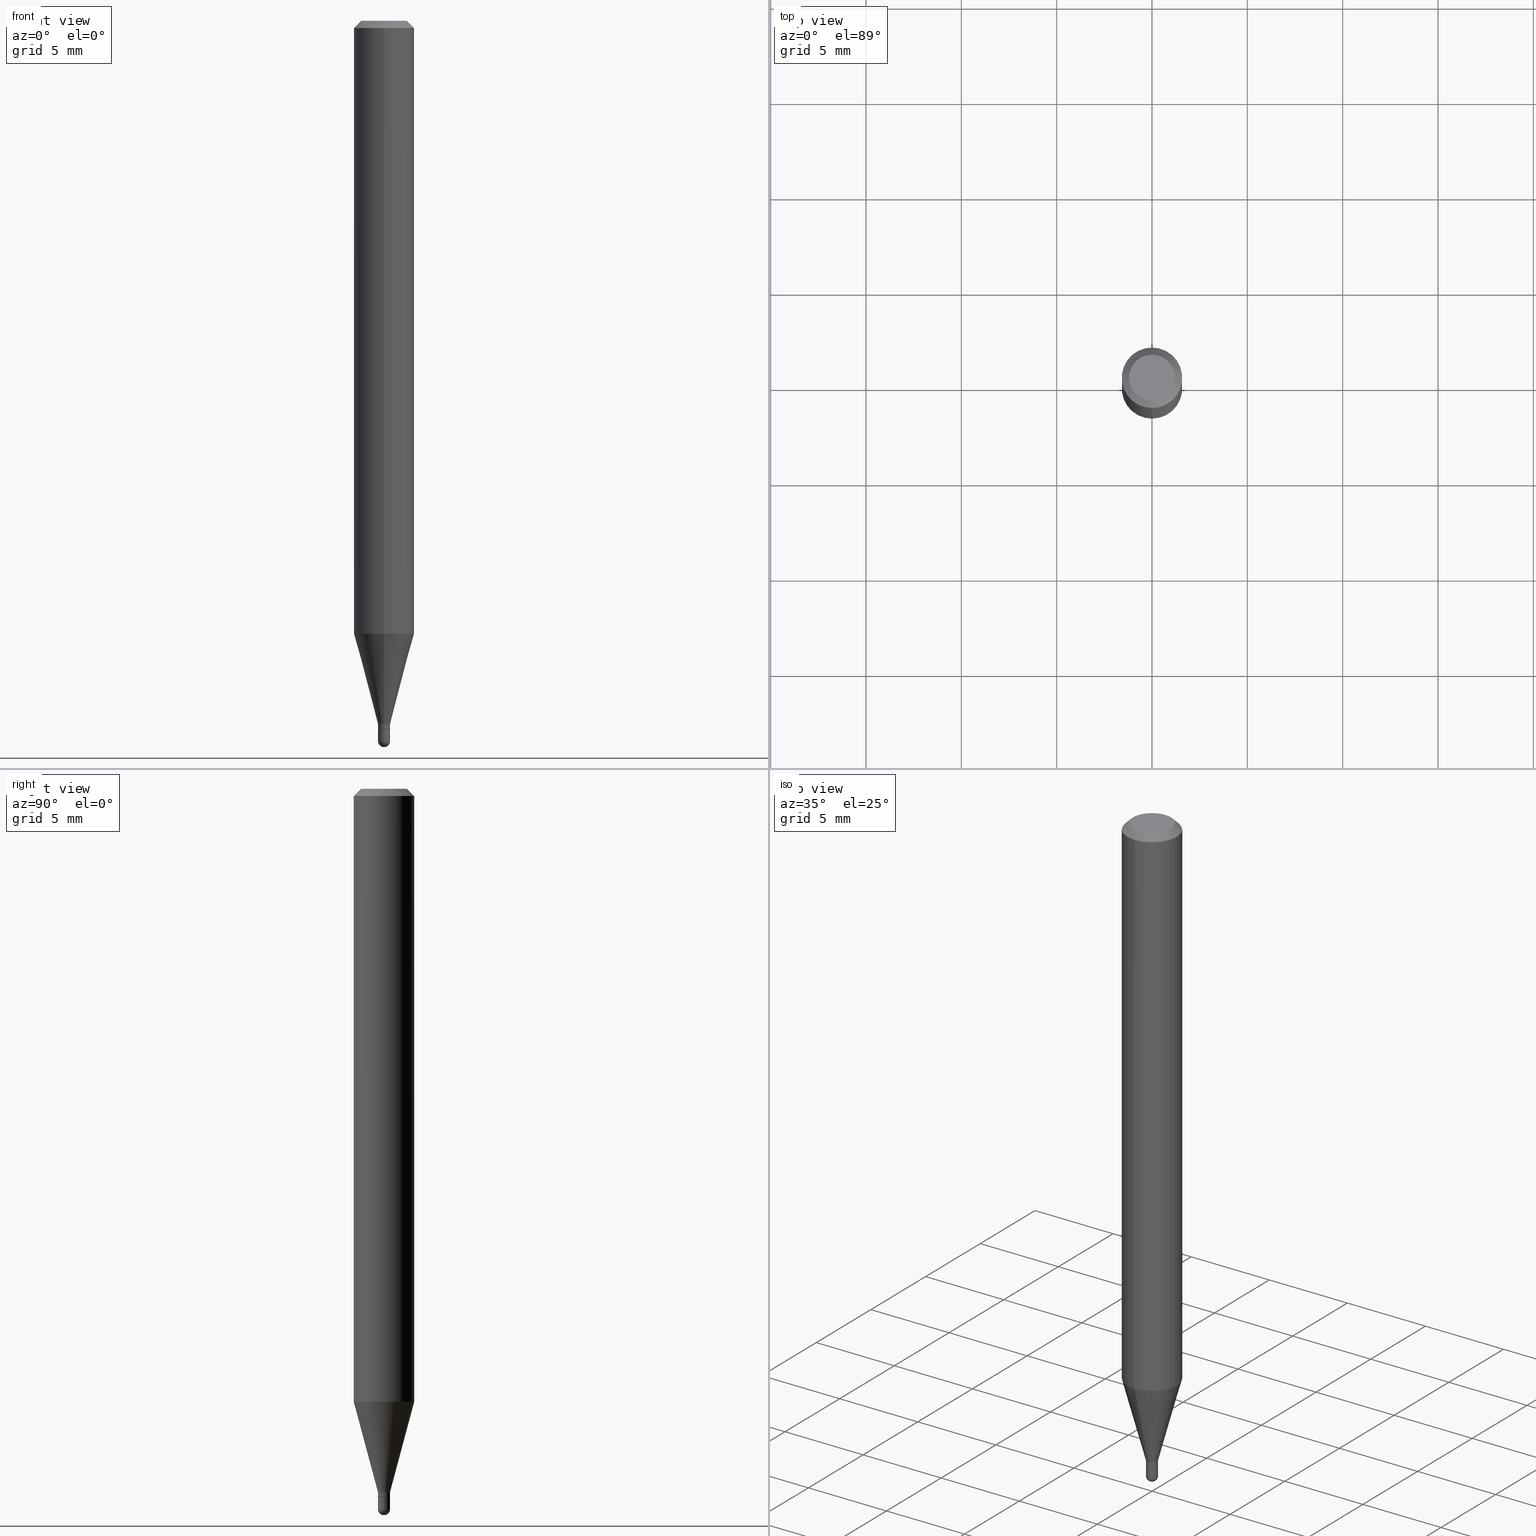
[diagram: canonical four-view strip — front | top / right | iso, engineering-drawing reading convention]
A machine part, canonical four-view strip (front | top / right | iso — engineering-drawing reading convention). The complete STEP part file that produces these views, byte-faithful:
ISO-10303-21;
HEADER;
FILE_DESCRIPTION (( 'STEP AP203' ),
    '1' );
FILE_NAME ('00689.STEP',
    '2024-03-07T18:02:06',
    ( '' ),
    ( '' ),
    'SwSTEP 2.0',
    'SolidWorks 2023',
    '' );
FILE_SCHEMA (( 'CONFIG_CONTROL_DESIGN' ));
ENDSEC;

DATA;
#1 = CC_DESIGN_DATE_AND_TIME_ASSIGNMENT ( #127, #90, ( #172 ) ) ;
#2 = DIRECTION ( 'NONE',  ( -2.445468806185136597E-29, 3.491481338843145583E-15, 1.000000000000000000 ) ) ;
#3 = DIRECTION ( 'NONE',  ( -2.445467529516572820E-29, 3.491483167105192382E-15, 1.000000000000000000 ) ) ;
#4 = CARTESIAN_POINT ( 'NONE',  ( -8.379555213219944590E-17, -0.01200000000000510728, -1.462000000000000188 ) ) ;
#5 = APPROVAL_ROLE ( '' ) ;
#6 = DIRECTION ( 'NONE',  ( -2.445468806185136597E-29, 3.491481338843145583E-15, 1.000000000000000000 ) ) ;
#7 = CARTESIAN_POINT ( 'NONE',  ( 3.637634849200391585E-29, -5.193578491529179799E-15, -1.487500000000000488 ) ) ;
#8 = DIRECTION ( 'NONE',  ( 1.000000000000000000, -6.982962677686294321E-15, 0.000000000000000000 ) ) ;
#9 = PERSON_AND_ORGANIZATION_ROLE ( 'classification_officer' ) ;
#10 = DIRECTION ( 'NONE',  ( 1.000000000000000000, -6.982962677686265922E-15, 4.883557194083112340E-29 ) ) ;
#11 = ADVANCED_FACE ( 'NONE', ( #95 ), #401, .T. ) ;
#12 = ADVANCED_FACE ( 'NONE', ( #439 ), #205, .T. ) ;
#13 = DATE_AND_TIME ( #51, #362 ) ;
#14 = DIRECTION ( 'NONE',  ( -6.982962677686265922E-15, -1.000000000000000000, 0.000000000000000000 ) ) ;
#15 = PERSON_AND_ORGANIZATION ( #232, #408 ) ;
#16 = CARTESIAN_POINT ( 'NONE',  ( 8.526512829124778167E-17, 0.01199999999999489669, -1.462000000000000188 ) ) ;
#17 = SECURITY_CLASSIFICATION_LEVEL ( 'unclassified' ) ;
#18 = CIRCLE ( 'NONE', #109, 0.01250000000000000069 ) ;
#19 = CC_DESIGN_PERSON_AND_ORGANIZATION_ASSIGNMENT ( #259, #9, ( #498 ) ) ;
#20 = ORIENTED_EDGE ( 'NONE', *, *, #24, .F. ) ;
#21 = ORIENTED_EDGE ( 'NONE', *, *, #303, .T. ) ;
#22 = DIRECTION ( 'NONE',  ( -2.445468806185136877E-29, 3.491481338843145188E-15, 1.000000000000000000 ) ) ;
#23 = VERTEX_POINT ( 'NONE', #435 ) ;
#24 = EDGE_CURVE ( 'NONE', #493, #140, #486, .T. ) ;
#25 = AXIS2_PLACEMENT_3D ( 'NONE', #508, #369, #151 ) ;
#26 = AXIS2_PLACEMENT_3D ( 'NONE', #418, #347, #462 ) ;
#27 = EDGE_LOOP ( 'NONE', ( #298, #494, #64, #107 ) ) ;
#28 = AXIS2_PLACEMENT_3D ( 'NONE', #74, #6, #314 ) ;
#29 = EDGE_LOOP ( 'NONE', ( #61, #139 ) ) ;
#30 = ADVANCED_FACE ( 'NONE', ( #84 ), #443, .T. ) ;
#31 = EDGE_CURVE ( 'NONE', #449, #407, #199, .T. ) ;
#32 = CYLINDRICAL_SURFACE ( 'NONE', #254, 0.01249999999999992610 ) ;
#33 = VECTOR ( 'NONE', #209, 39.37007874015748143 ) ;
#34 = ORIENTED_EDGE ( 'NONE', *, *, #100, .F. ) ;
#35 = DIRECTION ( 'NONE',  ( -2.445467529516572820E-29, 3.491483167105192382E-15, 1.000000000000000000 ) ) ;
#36 = CARTESIAN_POINT ( 'NONE',  ( 4.440892098500936776E-16, 0.06249999999999993755, -0.01500000000000022669 ) ) ;
#37 = CARTESIAN_POINT ( 'NONE',  ( 3.575275394642669920E-29, -5.104545717388679172E-15, -1.462000000000000188 ) ) ;
#38 = CARTESIAN_POINT ( 'NONE',  ( 4.440892098500933817E-16, 0.06249999999999557992, -1.265397459621557141 ) ) ;
#39 = DIRECTION ( 'NONE',  ( 1.000000000000000000, -6.982962677686292743E-15, 0.000000000000000000 ) ) ;
#40 = CIRCLE ( 'NONE', #378, 0.01249999999999996947 ) ;
#41 = APPROVAL_PERSON_ORGANIZATION ( #296, #56, #390 ) ;
#42 = CARTESIAN_POINT ( 'NONE',  ( 3.668201294274861525E-31, -5.237224750657791359E-17, -0.01500000000000000812 ) ) ;
#43 = CARTESIAN_POINT ( 'NONE',  ( 3.668201294274861525E-31, -5.237224750657791359E-17, -0.01500000000000000812 ) ) ;
#44 = DIRECTION ( 'NONE',  ( -2.445468806185136597E-29, 3.491481338843145583E-15, 1.000000000000000000 ) ) ;
#45 = DIRECTION ( 'NONE',  ( -6.982962677686265922E-15, -1.000000000000000000, 0.000000000000000000 ) ) ;
#46 = EDGE_CURVE ( 'NONE', #267, #149, #352, .T. ) ;
#47 = CARTESIAN_POINT ( 'NONE',  ( 4.440892098500625669E-16, 0.06250000000000000000, -2.182176979440745239E-16 ) ) ;
#48 = DIRECTION ( 'NONE',  ( -6.982962677686265922E-15, -1.000000000000000000, 3.491483167105192382E-15 ) ) ;
#49 = LINE ( 'NONE', #129, #78 ) ;
#50 = AXIS2_PLACEMENT_3D ( 'NONE', #65, #222, #315 ) ;
#51 = CALENDAR_DATE ( 2024, 7, 3 ) ;
#52 = CC_DESIGN_APPROVAL ( #56, ( #142 ) ) ;
#53 = DIRECTION ( 'NONE',  ( 1.839019923739601893E-15, 0.2588190451025252359, 0.9659258262890670910 ) ) ;
#54 = CARTESIAN_POINT ( 'NONE',  ( -8.728703347107781619E-17, -0.01249999999999992610, 4.364353958881464963E-17 ) ) ;
#55 = EDGE_LOOP ( 'NONE', ( #260, #66, #413, #182, #451 ) ) ;
#56 = APPROVAL ( #244, 'UNSPECIFIED' ) ;
#57 = ORIENTED_EDGE ( 'NONE', *, *, #502, .F. ) ;
#58 = AXIS2_PLACEMENT_3D ( 'NONE', #286, #323, #478 ) ;
#59 = AXIS2_PLACEMENT_3D ( 'NONE', #196, #316, #237 ) ;
#60 = ORIENTED_EDGE ( 'NONE', *, *, #46, .F. ) ;
#61 = ORIENTED_EDGE ( 'NONE', *, *, #138, .T. ) ;
#62 = EDGE_CURVE ( 'NONE', #503, #442, #242, .T. ) ;
#63 = ORIENTED_EDGE ( 'NONE', *, *, #62, .T. ) ;
#64 = ORIENTED_EDGE ( 'NONE', *, *, #488, .T. ) ;
#65 = CARTESIAN_POINT ( 'NONE',  ( 2.166741149257762773E-46, -3.093535350110797396E-32, -8.860232749383880225E-18 ) ) ;
#66 = ORIENTED_EDGE ( 'NONE', *, *, #211, .T. ) ;
#67 = ORIENTED_EDGE ( 'NONE', *, *, #179, .T. ) ;
#68 = CC_DESIGN_PERSON_AND_ORGANIZATION_ASSIGNMENT ( #436, #319, ( #410 ) ) ;
#69 = ORIENTED_EDGE ( 'NONE', *, *, #195, .T. ) ;
#70 = CONICAL_SURFACE ( 'NONE', #429, 0.06250000000000000000, 0.7853981633974483900 ) ;
#71 =( GEOMETRIC_REPRESENTATION_CONTEXT ( 3 ) GLOBAL_UNCERTAINTY_ASSIGNED_CONTEXT ( ( #214 ) ) GLOBAL_UNIT_ASSIGNED_CONTEXT ( ( #207, #160, #289 ) ) REPRESENTATION_CONTEXT ( 'NONE', 'WORKASPACE' ) );
#72 = CARTESIAN_POINT ( 'NONE',  ( 3.575273528153229569E-29, -5.104548390307791418E-15, -1.462000000000000188 ) ) ;
#73 = CYLINDRICAL_SURFACE ( 'NONE', #132, 0.01250000000000000243 ) ;
#74 = CARTESIAN_POINT ( 'NONE',  ( 3.637634849200391585E-29, -5.193578491529179799E-15, -1.487500000000000488 ) ) ;
#75 = CARTESIAN_POINT ( 'NONE',  ( 3.575273528153229569E-29, -5.104548390307791418E-15, -1.462000000000000188 ) ) ;
#76 = DIRECTION ( 'NONE',  ( -1.000000000000000000, 6.982962677686265922E-15, -4.876176775795935793E-29 ) ) ;
#77 = CARTESIAN_POINT ( 'NONE',  ( 3.575275394642669920E-29, -5.104545717388679172E-15, -1.462000000000000188 ) ) ;
#78 = VECTOR ( 'NONE', #53, 39.37007874015748854 ) ;
#79 = EDGE_CURVE ( 'NONE', #407, #93, #474, .T. ) ;
#80 = LOCAL_TIME ( 13, 2, 6.000000000000000000, #256 ) ;
#81 = APPLICATION_PROTOCOL_DEFINITION ( 'international standard', 'config_control_design', 1994, #85 ) ;
#82 = LENGTH_MEASURE_WITH_UNIT ( LENGTH_MEASURE( 0.02539999999999999897 ), #471 );
#83 = DIRECTION ( 'NONE',  ( -6.982962677686265922E-15, -1.000000000000000000, 4.370956789862821150E-15 ) ) ;
#84 = FACE_OUTER_BOUND ( 'NONE', #228, .T. ) ;
#85 = APPLICATION_CONTEXT ( 'configuration controlled 3d designs of mechanical parts and assemblies' ) ;
#86 = APPROVAL_DATE_TIME ( #119, #302 ) ;
#87 = CARTESIAN_POINT ( 'NONE',  ( 2.166741149257762773E-46, -3.093535350110797396E-32, -8.860232749383880225E-18 ) ) ;
#88 = DIRECTION ( 'NONE',  ( -6.982962677686265922E-15, -1.000000000000000000, 0.000000000000000000 ) ) ;
#89 = AXIS2_PLACEMENT_3D ( 'NONE', #276, #236, #88 ) ;
#90 = DATE_TIME_ROLE ( 'creation_date' ) ;
#91 = APPROVAL_PERSON_ORGANIZATION ( #358, #130, #133 ) ;
#92 = DIRECTION ( 'NONE',  ( -2.445467529516572820E-29, 3.491483167105192382E-15, 1.000000000000000000 ) ) ;
#93 = VERTEX_POINT ( 'NONE', #504 ) ;
#94 = CC_DESIGN_PERSON_AND_ORGANIZATION_ASSIGNMENT ( #402, #324, ( #172 ) ) ;
#95 = FACE_OUTER_BOUND ( 'NONE', #183, .T. ) ;
#96 = APPROVAL_STATUS ( 'not_yet_approved' ) ;
#97 = ORIENTED_EDGE ( 'NONE', *, *, #31, .F. ) ;
#98 = ORIENTED_EDGE ( 'NONE', *, *, #248, .T. ) ;
#99 = VERTEX_POINT ( 'NONE', #374 ) ;
#100 = EDGE_CURVE ( 'NONE', #23, #407, #40, .T. ) ;
#101 = AXIS2_PLACEMENT_3D ( 'NONE', #375, #344, #377 ) ;
#102 = ADVANCED_FACE ( 'NONE', ( #417 ), #261, .T. ) ;
#103 = AXIS2_PLACEMENT_3D ( 'NONE', #42, #35, #125 ) ;
#104 = ORIENTED_EDGE ( 'NONE', *, *, #195, .F. ) ;
#105 = EDGE_LOOP ( 'NONE', ( #414, #69, #506, #409 ) ) ;
#106 = ORIENTED_EDGE ( 'NONE', *, *, #303, .F. ) ;
#107 = ORIENTED_EDGE ( 'NONE', *, *, #252, .F. ) ;
#108 = AXIS2_PLACEMENT_3D ( 'NONE', #460, #343, #271 ) ;
#109 = AXIS2_PLACEMENT_3D ( 'NONE', #37, #2, #288 ) ;
#110 = ORIENTED_EDGE ( 'NONE', *, *, #423, .F. ) ;
#111 = CARTESIAN_POINT ( 'NONE',  ( -8.728703347104235443E-17, -0.01250000000000507129, -1.461500000000000243 ) ) ;
#112 = DIRECTION ( 'NONE',  ( -2.445467529516572820E-29, 3.491483167105192382E-15, 1.000000000000000000 ) ) ;
#113 = AXIS2_PLACEMENT_3D ( 'NONE', #456, #112, #148 ) ;
#114 = DIRECTION ( 'NONE',  ( -2.445467529516572820E-29, 3.491483167105192382E-15, 1.000000000000000000 ) ) ;
#115 = ORIENTED_EDGE ( 'NONE', *, *, #335, .T. ) ;
#116 = PLANE ( 'NONE',  #475 ) ;
#117 = CARTESIAN_POINT ( 'NONE',  ( -8.379555213219944590E-17, -0.01200000000000510728, -1.462000000000000188 ) ) ;
#118 = ADVANCED_FACE ( 'NONE', ( #190 ), #453, .F. ) ;
#119 = DATE_AND_TIME ( #470, #450 ) ;
#120 = DIRECTION ( 'NONE',  ( -6.982962677686265922E-15, -1.000000000000000000, 0.000000000000000000 ) ) ;
#121 = CLOSED_SHELL ( 'NONE', ( #137, #158, #102, #404, #479, #405, #12, #308, #118, #461, #446, #218 ) ) ;
#122 = AXIS2_PLACEMENT_3D ( 'NONE', #327, #3, #126 ) ;
#123 = CIRCLE ( 'NONE', #28, 0.01250000000000000243 ) ;
#124 = APPROVAL_DATE_TIME ( #13, #130 ) ;
#125 = DIRECTION ( 'NONE',  ( -6.982962677686265922E-15, -1.000000000000000000, 3.483106191921935554E-15 ) ) ;
#126 = DIRECTION ( 'NONE',  ( -6.982962677686265922E-15, -1.000000000000000000, 4.370956789862821150E-15 ) ) ;
#127 = DATE_AND_TIME ( #202, #187 ) ;
#128 = CARTESIAN_POINT ( 'NONE',  ( 3.550818852858064068E-29, -5.069633558636740729E-15, -1.452000000000000179 ) ) ;
#129 = CARTESIAN_POINT ( 'NONE',  ( 8.881784197004747224E-17, 0.01249999999999485550, -1.452000000000000179 ) ) ;
#130 = APPROVAL ( #356, 'UNSPECIFIED' ) ;
#131 = ORIENTED_EDGE ( 'NONE', *, *, #230, .F. ) ;
#132 = AXIS2_PLACEMENT_3D ( 'NONE', #380, #467, #336 ) ;
#133 = APPROVAL_ROLE ( '' ) ;
#134 = ORIENTED_EDGE ( 'NONE', *, *, #457, .F. ) ;
#135 = ORIENTED_EDGE ( 'NONE', *, *, #211, .F. ) ;
#136 = ORIENTED_EDGE ( 'NONE', *, *, #100, .T. ) ;
#137 = ADVANCED_FACE ( 'NONE', ( #229 ), #32, .T. ) ;
#138 = EDGE_CURVE ( 'NONE', #493, #430, #386, .T. ) ;
#139 = ORIENTED_EDGE ( 'NONE', *, *, #457, .T. ) ;
#140 = VERTEX_POINT ( 'NONE', #36 ) ;
#141 = CIRCLE ( 'NONE', #154, 0.06250000000000000000 ) ;
#142 = PRODUCT_DEFINITION_FORMATION_WITH_SPECIFIED_SOURCE ( 'ANY', '', #410, .NOT_KNOWN. ) ;
#143 = ORIENTED_EDGE ( 'NONE', *, *, #342, .F. ) ;
#144 = CIRCLE ( 'NONE', #59, 0.01249999999999992437 ) ;
#145 = CARTESIAN_POINT ( 'NONE',  ( -4.287811248607203282E-16, -0.06250000000000005551, -0.01499999999999979128 ) ) ;
#146 = ORIENTED_EDGE ( 'NONE', *, *, #484, .F. ) ;
#147 = CARTESIAN_POINT ( 'NONE',  ( 3.636565891338916928E-29, -5.195109300028113672E-15, -1.487500000000000266 ) ) ;
#148 = DIRECTION ( 'NONE',  ( -6.982962677686266711E-15, -1.000000000000000000, 3.491483167105192777E-15 ) ) ;
#149 = VERTEX_POINT ( 'NONE', #111 ) ;
#150 = EDGE_CURVE ( 'NONE', #269, #367, #275, .T. ) ;
#151 = DIRECTION ( 'NONE',  ( -6.982962677686266711E-15, -1.000000000000000000, 0.000000000000000000 ) ) ;
#152 = DIRECTION ( 'NONE',  ( -6.982962677686265922E-15, -1.000000000000000000, 0.000000000000000000 ) ) ;
#153 = AXIS2_PLACEMENT_3D ( 'NONE', #384, #201, #395 ) ;
#154 = AXIS2_PLACEMENT_3D ( 'NONE', #43, #317, #165 ) ;
#155 = CC_DESIGN_APPROVAL ( #302, ( #498 ) ) ;
#156 = EDGE_CURVE ( 'NONE', #399, #447, #233, .T. ) ;
#157 = CARTESIAN_POINT ( 'NONE',  ( -8.728703347104229280E-17, -0.01250000000000499323, -1.452000000000000179 ) ) ;
#158 = ADVANCED_FACE ( 'NONE', ( #463 ), #329, .T. ) ;
#159 = DIRECTION ( 'NONE',  ( -2.445468806185136597E-29, 3.491481338843145583E-15, 1.000000000000000000 ) ) ;
#160 =( NAMED_UNIT ( * ) PLANE_ANGLE_UNIT ( ) SI_UNIT ( $, .RADIAN. ) );
#161 = CARTESIAN_POINT ( 'NONE',  ( 3.668201294274861525E-31, -5.237224750657791359E-17, -0.01500000000000000812 ) ) ;
#162 = CC_DESIGN_DATE_AND_TIME_ASSIGNMENT ( #483, #287, ( #498 ) ) ;
#163 = COORDINATED_UNIVERSAL_TIME_OFFSET ( 5, 0, .BEHIND. ) ;
#164 = DIRECTION ( 'NONE',  ( -2.445468806185136877E-29, 3.491481338843145188E-15, 1.000000000000000000 ) ) ;
#165 = DIRECTION ( 'NONE',  ( -6.982962677686265922E-15, -1.000000000000000000, 3.483106191921935554E-15 ) ) ;
#166 = AXIS2_PLACEMENT_3D ( 'NONE', #7, #159, #249 ) ;
#167 = CIRCLE ( 'NONE', #103, 0.06250000000000000000 ) ;
#168 = PERSON_AND_ORGANIZATION_ROLE ( 'creator' ) ;
#169 = CARTESIAN_POINT ( 'NONE',  ( -0.01250000000000000069, -5.060244262488917278E-15, -1.462000000000000188 ) ) ;
#170 = CARTESIAN_POINT ( 'NONE',  ( 2.664535259100706427E-16, 0.01249999999999485724, -1.452000000000000179 ) ) ;
#171 = CARTESIAN_POINT ( 'NONE',  ( 4.364351673553919652E-16, 0.06249999999999995143, -0.01500000000000022669 ) ) ;
#172 = PRODUCT_DEFINITION ( 'UNKNOWN', '', #142, #400 ) ;
#173 = FACE_OUTER_BOUND ( 'NONE', #445, .T. ) ;
#174 = PERSON_AND_ORGANIZATION ( #232, #408 ) ;
#175 = ORIENTED_EDGE ( 'NONE', *, *, #273, .T. ) ;
#176 = MANIFOLD_SOLID_BREP ( 'Body-Move/Copy2[2]', #121 ) ;
#177 = AXIS2_PLACEMENT_3D ( 'NONE', #227, #373, #507 ) ;
#178 = PRODUCT_RELATED_PRODUCT_CATEGORY ( 'detail', '', ( #410 ) ) ;
#179 = EDGE_CURVE ( 'NONE', #430, #447, #500, .T. ) ;
#180 = ORIENTED_EDGE ( 'NONE', *, *, #321, .T. ) ;
#181 = MANIFOLD_SOLID_BREP ( 'Body-Move/Copy2[1]', #186 ) ;
#182 = ORIENTED_EDGE ( 'NONE', *, *, #459, .F. ) ;
#183 = EDGE_LOOP ( 'NONE', ( #135, #332, #306, #370, #57 ) ) ;
#184 = FACE_OUTER_BOUND ( 'NONE', #105, .T. ) ;
#185 = ORIENTED_EDGE ( 'NONE', *, *, #307, .F. ) ;
#186 = CLOSED_SHELL ( 'NONE', ( #189, #30, #419, #258, #11 ) ) ;
#187 = LOCAL_TIME ( 13, 2, 6.000000000000000000, #480 ) ;
#188 = ORIENTED_EDGE ( 'NONE', *, *, #248, .F. ) ;
#189 = ADVANCED_FACE ( 'NONE', ( #348 ), #73, .T. ) ;
#190 = FACE_OUTER_BOUND ( 'NONE', #29, .T. ) ;
#191 = EDGE_LOOP ( 'NONE', ( #143, #330, #220, #146 ) ) ;
#192 = AXIS2_PLACEMENT_3D ( 'NONE', #77, #44, #8 ) ;
#193 = AXIS2_PLACEMENT_3D ( 'NONE', #128, #114, #14 ) ;
#194 = DIRECTION ( 'NONE',  ( -2.445467529516572820E-29, 3.491483167105192382E-15, 1.000000000000000000 ) ) ;
#195 = EDGE_CURVE ( 'NONE', #269, #149, #455, .T. ) ;
#196 = CARTESIAN_POINT ( 'NONE',  ( 3.550818852858064068E-29, -5.069633558636740729E-15, -1.452000000000000179 ) ) ;
#197 = ORIENTED_EDGE ( 'NONE', *, *, #46, .T. ) ;
#198 = DIRECTION ( 'NONE',  ( -6.982962677686266711E-15, -1.000000000000000000, 3.491483167105192777E-15 ) ) ;
#199 = CIRCLE ( 'NONE', #270, 0.01250000000000000243 ) ;
#200 = AXIS2_PLACEMENT_3D ( 'NONE', #434, #363, #351 ) ;
#201 = DIRECTION ( 'NONE',  ( -1.000000000000000000, 6.982962677686266711E-15, -4.883557194083112901E-29 ) ) ;
#202 = CALENDAR_DATE ( 2024, 7, 3 ) ;
#203 = CC_DESIGN_PERSON_AND_ORGANIZATION_ASSIGNMENT ( #353, #326, ( #142 ) ) ;
#204 = LINE ( 'NONE', #382, #421 ) ;
#205 = CYLINDRICAL_SURFACE ( 'NONE', #428, 0.06250000000000000000 ) ;
#206 = CALENDAR_DATE ( 2024, 7, 3 ) ;
#207 =( CONVERSION_BASED_UNIT ( 'INCH', #82 ) LENGTH_UNIT ( ) NAMED_UNIT ( #240 ) );
#208 = DIRECTION ( 'NONE',  ( -2.445467529516572820E-29, 3.491483167105192382E-15, 1.000000000000000000 ) ) ;
#209 = DIRECTION ( 'NONE',  ( -2.445467529516572820E-29, 3.491483167105192382E-15, 1.000000000000000000 ) ) ;
#210 = CIRCLE ( 'NONE', #231, 0.01200000000000000198 ) ;
#211 = EDGE_CURVE ( 'NONE', #449, #442, #313, .T. ) ;
#212 = AXIS2_PLACEMENT_3D ( 'NONE', #72, #350, #48 ) ;
#213 = DIRECTION ( 'NONE',  ( 1.000000000000000000, -6.982962677686267499E-15, 4.876176775795936353E-29 ) ) ;
#214 = UNCERTAINTY_MEASURE_WITH_UNIT (LENGTH_MEASURE( 1.000000000000000082E-05 ), #207, 'distance_accuracy_value', 'NONE');
#215 = DATE_AND_TIME ( #440, #80 ) ;
#216 = CARTESIAN_POINT ( 'NONE',  ( 0.000000000000000000, 0.000000000000000000, 0.000000000000000000 ) ) ;
#217 = ORIENTED_EDGE ( 'NONE', *, *, #488, .F. ) ;
#218 = ADVANCED_FACE ( 'NONE', ( #184 ), #495, .T. ) ;
#219 = EDGE_CURVE ( 'NONE', #485, #367, #285, .T. ) ;
#220 = ORIENTED_EDGE ( 'NONE', *, *, #156, .T. ) ;
#221 = AXIS2_PLACEMENT_3D ( 'NONE', #216, #509, #433 ) ;
#222 = DIRECTION ( 'NONE',  ( -2.445467529516572820E-29, 3.491483167105192382E-15, 1.000000000000000000 ) ) ;
#223 = ORIENTED_EDGE ( 'NONE', *, *, #138, .F. ) ;
#224 = ORIENTED_EDGE ( 'NONE', *, *, #156, .F. ) ;
#225 = VECTOR ( 'NONE', #194, 39.37007874015748143 ) ;
#226 = CC_DESIGN_SECURITY_CLASSIFICATION ( #498, ( #142 ) ) ;
#227 = CARTESIAN_POINT ( 'NONE',  ( 3.668201294274861525E-31, -5.237224750657791359E-17, -0.01500000000000000812 ) ) ;
#228 = EDGE_LOOP ( 'NONE', ( #110, #136, #97, #185 ) ) ;
#229 = FACE_OUTER_BOUND ( 'NONE', #299, .T. ) ;
#230 = EDGE_CURVE ( 'NONE', #149, #269, #415, .T. ) ;
#231 = AXIS2_PLACEMENT_3D ( 'NONE', #438, #355, #280 ) ;
#232 = PERSON ( 'UNSPECIFIED', 'UNSPECIFIED', 'UNSPECIFIED', ('UNSPECIFIED'), ('UNSPECIFIED'), ('UNSPECIFIED') ) ;
#233 = LINE ( 'NONE', #505, #253 ) ;
#234 = DIRECTION ( 'NONE',  ( -2.445468806185136597E-29, 3.491481338843145583E-15, 1.000000000000000000 ) ) ;
#235 = DIRECTION ( 'NONE',  ( 6.982962677686265922E-15, 1.000000000000000000, 0.000000000000000000 ) ) ;
#236 = DIRECTION ( 'NONE',  ( -2.445467529516572820E-29, 3.491483167105192382E-15, 1.000000000000000000 ) ) ;
#237 = DIRECTION ( 'NONE',  ( -6.982962677686265922E-15, -1.000000000000000000, 0.000000000000000000 ) ) ;
#238 = EDGE_LOOP ( 'NONE', ( #21, #368, #188, #224 ) ) ;
#239 = CARTESIAN_POINT ( 'NONE',  ( 8.881784197004743526E-17, 0.01249999999999478091, -1.461500000000000243 ) ) ;
#240 = DIMENSIONAL_EXPONENTS ( 1.000000000000000000, 0.000000000000000000, 0.000000000000000000, 0.000000000000000000, 0.000000000000000000, 0.000000000000000000, 0.000000000000000000 ) ;
#241 = LINE ( 'NONE', #277, #465 ) ;
#242 = CIRCLE ( 'NONE', #192, 0.01250000000000000069 ) ;
#243 = CIRCLE ( 'NONE', #496, 0.01200000000000000198 ) ;
#244 = APPROVAL_STATUS ( 'not_yet_approved' ) ;
#245 = DIRECTION ( 'NONE',  ( 2.438088387897960049E-29, -3.491481338843145188E-15, -1.000000000000000000 ) ) ;
#246 = LINE ( 'NONE', #47, #33 ) ;
#247 = FACE_OUTER_BOUND ( 'NONE', #452, .T. ) ;
#248 = EDGE_CURVE ( 'NONE', #447, #140, #141, .T. ) ;
#249 = DIRECTION ( 'NONE',  ( 1.000000000000000000, -6.982962677686292743E-15, 0.000000000000000000 ) ) ;
#250 = APPLICATION_PROTOCOL_DEFINITION ( 'international standard', 'config_control_design', 1994, #312 ) ;
#251 = DIRECTION ( 'NONE',  ( 2.445467529516572820E-29, -3.491483167105192382E-15, -1.000000000000000000 ) ) ;
#252 = EDGE_CURVE ( 'NONE', #334, #399, #420, .T. ) ;
#253 = VECTOR ( 'NONE', #346, 39.37007874015748143 ) ;
#254 = AXIS2_PLACEMENT_3D ( 'NONE', #274, #379, #437 ) ;
#255 = AXIS2_PLACEMENT_3D ( 'NONE', #425, #388, #152 ) ;
#256 = COORDINATED_UNIVERSAL_TIME_OFFSET ( 5, 0, .BEHIND. ) ;
#257 = FACE_OUTER_BOUND ( 'NONE', #238, .T. ) ;
#258 = ADVANCED_FACE ( 'NONE', ( #431 ), #290, .T. ) ;
#259 = PERSON_AND_ORGANIZATION ( #232, #408 ) ;
#260 = ORIENTED_EDGE ( 'NONE', *, *, #307, .T. ) ;
#261 = CONICAL_SURFACE ( 'NONE', #177, 0.06250000000000000000, 0.7853981633974483900 ) ;
#262 = CONICAL_SURFACE ( 'NONE', #489, 0.01249999999999992437, 0.2617993877991505181 ) ;
#263 = ADVANCED_BREP_SHAPE_REPRESENTATION ( '00689', ( #181, #176, #512 ), #71 ) ;
#264 = CARTESIAN_POINT ( 'NONE',  ( 0.000000000000000000, 0.000000000000000000, 0.000000000000000000 ) ) ;
#265 = ORIENTED_EDGE ( 'NONE', *, *, #321, .F. ) ;
#266 = ORIENTED_EDGE ( 'NONE', *, *, #230, .T. ) ;
#267 = VERTEX_POINT ( 'NONE', #117 ) ;
#268 = ORIENTED_EDGE ( 'NONE', *, *, #79, .F. ) ;
#269 = VERTEX_POINT ( 'NONE', #239 ) ;
#270 = AXIS2_PLACEMENT_3D ( 'NONE', #389, #294, #39 ) ;
#271 = DIRECTION ( 'NONE',  ( 6.982962677686265922E-15, 1.000000000000000000, -3.491483167105192382E-15 ) ) ;
#272 = EDGE_CURVE ( 'NONE', #476, #269, #292, .T. ) ;
#273 = EDGE_CURVE ( 'NONE', #476, #267, #210, .T. ) ;
#274 = CARTESIAN_POINT ( 'NONE',  ( 0.000000000000000000, 0.000000000000000000, 0.000000000000000000 ) ) ;
#275 = LINE ( 'NONE', #426, #225 ) ;
#276 = CARTESIAN_POINT ( 'NONE',  ( 3.550818852858064068E-29, -5.069633558636740729E-15, -1.452000000000000179 ) ) ;
#277 = CARTESIAN_POINT ( 'NONE',  ( 0.01250000000000000243, -8.728703347107835853E-17, 6.095220969744921493E-31 ) ) ;
#278 = CARTESIAN_POINT ( 'NONE',  ( -0.01250000000000000243, 8.881784197001254049E-17, -6.148668862818633278E-31 ) ) ;
#279 = CARTESIAN_POINT ( 'NONE',  ( 8.728703347111407914E-17, 0.01249999999999489540, -1.462000000000000188 ) ) ;
#280 = DIRECTION ( 'NONE',  ( -6.982962677686265922E-15, -1.000000000000000000, 0.000000000000000000 ) ) ;
#281 = DIRECTION ( 'NONE',  ( 4.937700262164548042E-15, 0.7071067811865451302, -0.7071067811865499042 ) ) ;
#282 = DIRECTION ( 'NONE',  ( -2.445467529516572820E-29, 3.491483167105192382E-15, 1.000000000000000000 ) ) ;
#283 = SHAPE_DEFINITION_REPRESENTATION ( #458, #263 ) ;
#284 = DIRECTION ( 'NONE',  ( -1.807323732225331717E-15, -0.2588190451025184080, 0.9659258262890689783 ) ) ;
#285 = CIRCLE ( 'NONE', #89, 0.01249999999999992437 ) ;
#286 = CARTESIAN_POINT ( 'NONE',  ( 3.574050794388471939E-29, -5.102802648724238687E-15, -1.461500000000000243 ) ) ;
#287 = DATE_TIME_ROLE ( 'classification_date' ) ;
#288 = DIRECTION ( 'NONE',  ( 1.000000000000000000, -6.982962677686294321E-15, 0.000000000000000000 ) ) ;
#289 =( NAMED_UNIT ( * ) SI_UNIT ( $, .STERADIAN. ) SOLID_ANGLE_UNIT ( ) );
#290 = SPHERICAL_SURFACE ( 'NONE', #200, 0.01249999999999996947 ) ;
#291 = CARTESIAN_POINT ( 'NONE',  ( 0.000000000000000000, 0.000000000000000000, 0.000000000000000000 ) ) ;
#292 = LINE ( 'NONE', #16, #360 ) ;
#293 = CIRCLE ( 'NONE', #166, 0.01250000000000000243 ) ;
#294 = DIRECTION ( 'NONE',  ( -2.445468806185136597E-29, 3.491481338843145583E-15, 1.000000000000000000 ) ) ;
#295 = LOCAL_TIME ( 13, 2, 6.000000000000000000, #163 ) ;
#296 = PERSON_AND_ORGANIZATION ( #232, #408 ) ;
#297 = CC_DESIGN_PERSON_AND_ORGANIZATION_ASSIGNMENT ( #15, #168, ( #142 ) ) ;
#298 = ORIENTED_EDGE ( 'NONE', *, *, #335, .F. ) ;
#299 = EDGE_LOOP ( 'NONE', ( #266, #376, #416, #412 ) ) ;
#300 = EDGE_LOOP ( 'NONE', ( #511, #115, #106, #217 ) ) ;
#301 = AXIS2_PLACEMENT_3D ( 'NONE', #472, #482, #83 ) ;
#302 = APPROVAL ( #96, 'UNSPECIFIED' ) ;
#303 = EDGE_CURVE ( 'NONE', #399, #334, #487, .T. ) ;
#304 = ORIENTED_EDGE ( 'NONE', *, *, #272, .T. ) ;
#305 = ORIENTED_EDGE ( 'NONE', *, *, #423, .T. ) ;
#306 = ORIENTED_EDGE ( 'NONE', *, *, #79, .T. ) ;
#307 = EDGE_CURVE ( 'NONE', #99, #449, #293, .T. ) ;
#308 = ADVANCED_FACE ( 'NONE', ( #173 ), #70, .T. ) ;
#309 = VECTOR ( 'NONE', #310, 39.37007874015748143 ) ;
#310 = DIRECTION ( 'NONE',  ( -4.851104656540964275E-15, -0.7071067811865500152, -0.7071067811865450192 ) ) ;
#311 = DIRECTION ( 'NONE',  ( -7.105427357601001070E-15, -1.000000000000000000, 0.000000000000000000 ) ) ;
#312 = APPLICATION_CONTEXT ( 'configuration controlled 3d designs of mechanical parts and assemblies' ) ;
#313 = LINE ( 'NONE', #278, #501 ) ;
#314 = DIRECTION ( 'NONE',  ( 1.000000000000000000, -6.982962677686292743E-15, 0.000000000000000000 ) ) ;
#315 = DIRECTION ( 'NONE',  ( -6.982962677686266711E-15, -1.000000000000000000, 3.491483167105192777E-15 ) ) ;
#316 = DIRECTION ( 'NONE',  ( -2.445467529516572820E-29, 3.491483167105192382E-15, 1.000000000000000000 ) ) ;
#317 = DIRECTION ( 'NONE',  ( -2.445467529516572820E-29, 3.491483167105192382E-15, 1.000000000000000000 ) ) ;
#318 = CARTESIAN_POINT ( 'NONE',  ( 0.000000000000000000, 0.000000000000000000, 0.000000000000000000 ) ) ;
#319 = PERSON_AND_ORGANIZATION_ROLE ( 'design_owner' ) ;
#320 = DIRECTION ( 'NONE',  ( -2.445467529516572820E-29, 3.491483167105192382E-15, 1.000000000000000000 ) ) ;
#321 = EDGE_CURVE ( 'NONE', #267, #476, #243, .T. ) ;
#322 = PLANE ( 'NONE',  #212 ) ;
#323 = DIRECTION ( 'NONE',  ( -2.445467529516572820E-29, 3.491483167105192382E-15, 1.000000000000000000 ) ) ;
#324 = PERSON_AND_ORGANIZATION_ROLE ( 'creator' ) ;
#325 = DIRECTION ( 'NONE',  ( -2.445467529516572820E-29, 3.491483167105192382E-15, 1.000000000000000000 ) ) ;
#326 = PERSON_AND_ORGANIZATION_ROLE ( 'design_supplier' ) ;
#327 = CARTESIAN_POINT ( 'NONE',  ( 3.094488399437275627E-29, -4.418113929966338123E-15, -1.265397459621556919 ) ) ;
#328 = COORDINATED_UNIVERSAL_TIME_OFFSET ( 5, 0, .BEHIND. ) ;
#329 = CONICAL_SURFACE ( 'NONE', #101, 0.01200000000000000198, 0.7853981633974739252 ) ;
#330 = ORIENTED_EDGE ( 'NONE', *, *, #252, .T. ) ;
#331 = CC_DESIGN_APPROVAL ( #130, ( #172 ) ) ;
#332 = ORIENTED_EDGE ( 'NONE', *, *, #31, .T. ) ;
#333 = EDGE_LOOP ( 'NONE', ( #180, #304, #131, #60 ) ) ;
#334 = VERTEX_POINT ( 'NONE', #38 ) ;
#335 = EDGE_CURVE ( 'NONE', #367, #334, #49, .T. ) ;
#336 = DIRECTION ( 'NONE',  ( 1.000000000000000000, -6.982962677686267499E-15, 4.876176775795936353E-29 ) ) ;
#337 = ORIENTED_EDGE ( 'NONE', *, *, #502, .T. ) ;
#338 = EDGE_LOOP ( 'NONE', ( #34, #305, #411, #268 ) ) ;
#339 = CIRCLE ( 'NONE', #397, 0.01249999999999996947 ) ;
#340 = APPROVAL_PERSON_ORGANIZATION ( #174, #302, #5 ) ;
#341 = ORIENTED_EDGE ( 'NONE', *, *, #272, .F. ) ;
#342 = EDGE_CURVE ( 'NONE', #334, #140, #246, .T. ) ;
#343 = DIRECTION ( 'NONE',  ( 2.445467529516572540E-29, -3.491483167105192382E-15, -1.000000000000000000 ) ) ;
#344 = DIRECTION ( 'NONE',  ( -2.445467529516572820E-29, 3.491483167105192382E-15, 1.000000000000000000 ) ) ;
#345 = CONICAL_SURFACE ( 'NONE', #255, 0.01200000000000000198, 0.7853981633974739252 ) ;
#346 = DIRECTION ( 'NONE',  ( -2.445467529516572820E-29, 3.491483167105192382E-15, 1.000000000000000000 ) ) ;
#347 = DIRECTION ( 'NONE',  ( -2.445468806185136597E-29, 3.491481338843145583E-15, 1.000000000000000000 ) ) ;
#348 = FACE_OUTER_BOUND ( 'NONE', #55, .T. ) ;
#349 = FACE_OUTER_BOUND ( 'NONE', #448, .T. ) ;
#350 = DIRECTION ( 'NONE',  ( -2.445467529516572540E-29, 3.491483167105192382E-15, 1.000000000000000000 ) ) ;
#351 = DIRECTION ( 'NONE',  ( 6.982962677686266711E-15, 1.000000000000000000, 0.000000000000000000 ) ) ;
#352 = LINE ( 'NONE', #4, #454 ) ;
#353 = PERSON_AND_ORGANIZATION ( #232, #408 ) ;
#354 = CARTESIAN_POINT ( 'NONE',  ( 3.550818852858064068E-29, -5.069633558636740729E-15, -1.452000000000000179 ) ) ;
#355 = DIRECTION ( 'NONE',  ( -2.445467529516572820E-29, 3.491483167105192382E-15, 1.000000000000000000 ) ) ;
#356 = APPROVAL_STATUS ( 'not_yet_approved' ) ;
#357 = FACE_OUTER_BOUND ( 'NONE', #27, .T. ) ;
#358 = PERSON_AND_ORGANIZATION ( #232, #408 ) ;
#359 = CARTESIAN_POINT ( 'NONE',  ( 3.840629472727447874E-16, 0.04749999999999999362, -1.747056831868805383E-16 ) ) ;
#360 = VECTOR ( 'NONE', #361, 39.37007874015748143 ) ;
#361 = DIRECTION ( 'NONE',  ( 5.024295867788190974E-15, 0.7071067811865681119, 0.7071067811865270336 ) ) ;
#362 = LOCAL_TIME ( 13, 2, 6.000000000000000000, #328 ) ;
#363 = DIRECTION ( 'NONE',  ( -1.000000000000000000, 6.982962677686266711E-15, -4.883557194083112901E-29 ) ) ;
#364 = DIRECTION ( 'NONE',  ( 0.000000000000000000, 0.000000000000000000, 1.000000000000000000 ) ) ;
#365 = AXIS2_PLACEMENT_3D ( 'NONE', #264, #234, #213 ) ;
#366 = VECTOR ( 'NONE', #92, 39.37007874015748143 ) ;
#367 = VERTEX_POINT ( 'NONE', #170 ) ;
#368 = ORIENTED_EDGE ( 'NONE', *, *, #342, .T. ) ;
#369 = DIRECTION ( 'NONE',  ( -2.445467529516572820E-29, 3.491483167105192382E-15, 1.000000000000000000 ) ) ;
#370 = ORIENTED_EDGE ( 'NONE', *, *, #459, .T. ) ;
#371 = VECTOR ( 'NONE', #281, 39.37007874015748143 ) ;
#372 = ORIENTED_EDGE ( 'NONE', *, *, #179, .F. ) ;
#373 = DIRECTION ( 'NONE',  ( 2.445467529516572820E-29, -3.491483167105192382E-15, -1.000000000000000000 ) ) ;
#374 = CARTESIAN_POINT ( 'NONE',  ( 8.728703347111459683E-17, 0.01249999999999479132, -1.487500000000000488 ) ) ;
#375 = CARTESIAN_POINT ( 'NONE',  ( 3.575273528153229569E-29, -5.104548390307791418E-15, -1.462000000000000188 ) ) ;
#376 = ORIENTED_EDGE ( 'NONE', *, *, #150, .T. ) ;
#377 = DIRECTION ( 'NONE',  ( -6.982962677686265922E-15, -1.000000000000000000, 0.000000000000000000 ) ) ;
#378 = AXIS2_PLACEMENT_3D ( 'NONE', #147, #510, #311 ) ;
#379 = DIRECTION ( 'NONE',  ( -2.445467529516572820E-29, 3.491483167105192382E-15, 1.000000000000000000 ) ) ;
#380 = CARTESIAN_POINT ( 'NONE',  ( 0.000000000000000000, 0.000000000000000000, 0.000000000000000000 ) ) ;
#381 = CARTESIAN_POINT ( 'NONE',  ( 8.704148513064775021E-17, 0.01199999999999489669, -1.462000000000000188 ) ) ;
#382 = CARTESIAN_POINT ( 'NONE',  ( -8.728703347104229280E-17, -0.01250000000000499323, -1.452000000000000179 ) ) ;
#383 = LINE ( 'NONE', #54, #366 ) ;
#384 = CARTESIAN_POINT ( 'NONE',  ( 3.636565891338916928E-29, -5.195109300028113672E-15, -1.487500000000000266 ) ) ;
#385 = EDGE_CURVE ( 'NONE', #149, #485, #383, .T. ) ;
#386 = CIRCLE ( 'NONE', #50, 0.04749999999999999362 ) ;
#387 = AXIS2_PLACEMENT_3D ( 'NONE', #87, #208, #198 ) ;
#388 = DIRECTION ( 'NONE',  ( -2.445467529516572820E-29, 3.491483167105192382E-15, 1.000000000000000000 ) ) ;
#389 = CARTESIAN_POINT ( 'NONE',  ( 3.637634849200391585E-29, -5.193578491529179799E-15, -1.487500000000000488 ) ) ;
#390 = APPROVAL_ROLE ( '' ) ;
#391 = CARTESIAN_POINT ( 'NONE',  ( -8.881784196997603102E-17, -0.01250000000000518058, -1.487500000000000488 ) ) ;
#392 = DIRECTION ( 'NONE',  ( 1.000000000000000000, 0.000000000000000000, 0.000000000000000000 ) ) ;
#393 = CARTESIAN_POINT ( 'NONE',  ( -0.01250000000000000243, -5.060244262488917278E-15, -1.487500000000000488 ) ) ;
#394 = DIRECTION ( 'NONE',  ( 6.982962677686265922E-15, 1.000000000000000000, -3.483106191921935554E-15 ) ) ;
#395 = DIRECTION ( 'NONE',  ( 6.982962677686266711E-15, 1.000000000000000000, 0.000000000000000000 ) ) ;
#396 = MECHANICAL_CONTEXT ( 'NONE', #85, 'mechanical' ) ;
#397 = AXIS2_PLACEMENT_3D ( 'NONE', #466, #10, #235 ) ;
#398 = CYLINDRICAL_SURFACE ( 'NONE', #221, 0.06250000000000000000 ) ;
#399 = VERTEX_POINT ( 'NONE', #441 ) ;
#400 = DESIGN_CONTEXT ( 'detailed design', #312, 'design' ) ;
#401 = CYLINDRICAL_SURFACE ( 'NONE', #365, 0.01250000000000000243 ) ;
#402 = PERSON_AND_ORGANIZATION ( #232, #408 ) ;
#403 = EDGE_LOOP ( 'NONE', ( #134, #67, #98, #20 ) ) ;
#404 = ADVANCED_FACE ( 'NONE', ( #257 ), #398, .T. ) ;
#405 = ADVANCED_FACE ( 'NONE', ( #357 ), #406, .T. ) ;
#406 = CONICAL_SURFACE ( 'NONE', #193, 0.01249999999999992437, 0.2617993877991505181 ) ;
#407 = VERTEX_POINT ( 'NONE', #391 ) ;
#408 = ORGANIZATION ( 'UNSPECIFIED', 'UNSPECIFIED', '' ) ;
#409 = ORIENTED_EDGE ( 'NONE', *, *, #499, .F. ) ;
#410 = PRODUCT ( '00689', '00689', '', ( #396 ) ) ;
#411 = ORIENTED_EDGE ( 'NONE', *, *, #490, .F. ) ;
#412 = ORIENTED_EDGE ( 'NONE', *, *, #385, .F. ) ;
#413 = ORIENTED_EDGE ( 'NONE', *, *, #62, .F. ) ;
#414 = ORIENTED_EDGE ( 'NONE', *, *, #150, .F. ) ;
#415 = CIRCLE ( 'NONE', #58, 0.01249999999999992610 ) ;
#416 = ORIENTED_EDGE ( 'NONE', *, *, #219, .F. ) ;
#417 = FACE_OUTER_BOUND ( 'NONE', #403, .T. ) ;
#418 = CARTESIAN_POINT ( 'NONE',  ( 3.637634849200391585E-29, -5.193578491529179799E-15, -1.487500000000000488 ) ) ;
#419 = ADVANCED_FACE ( 'NONE', ( #247 ), #116, .F. ) ;
#420 = CIRCLE ( 'NONE', #122, 0.06250000000000000000 ) ;
#421 = VECTOR ( 'NONE', #284, 39.37007874015748854 ) ;
#422 = FACE_OUTER_BOUND ( 'NONE', #492, .T. ) ;
#423 = EDGE_CURVE ( 'NONE', #23, #99, #339, .T. ) ;
#424 = ORIENTED_EDGE ( 'NONE', *, *, #273, .F. ) ;
#425 = CARTESIAN_POINT ( 'NONE',  ( 3.575273528153229569E-29, -5.104548390307791418E-15, -1.462000000000000188 ) ) ;
#426 = CARTESIAN_POINT ( 'NONE',  ( 8.881784197001198582E-17, 0.01249999999999992610, -4.364353958881464963E-17 ) ) ;
#427 = CARTESIAN_POINT ( 'NONE',  ( -4.364351673553912750E-16, -0.06250000000000005551, -0.01499999999999979128 ) ) ;
#428 = AXIS2_PLACEMENT_3D ( 'NONE', #318, #282, #473 ) ;
#429 = AXIS2_PLACEMENT_3D ( 'NONE', #161, #251, #394 ) ;
#430 = VERTEX_POINT ( 'NONE', #481 ) ;
#431 = FACE_OUTER_BOUND ( 'NONE', #338, .T. ) ;
#432 = COORDINATED_UNIVERSAL_TIME_OFFSET ( 5, 0, .BEHIND. ) ;
#433 = DIRECTION ( 'NONE',  ( -6.982962677686265922E-15, -1.000000000000000000, 3.491483167105192382E-15 ) ) ;
#434 = CARTESIAN_POINT ( 'NONE',  ( 3.636565891338916928E-29, -5.195109300028113672E-15, -1.487500000000000266 ) ) ;
#435 = CARTESIAN_POINT ( 'NONE',  ( 3.667668730346968408E-29, -5.237987412514185114E-15, -1.500000000000000222 ) ) ;
#436 = PERSON_AND_ORGANIZATION ( #232, #408 ) ;
#437 = DIRECTION ( 'NONE',  ( -6.982962677686266711E-15, -1.000000000000000000, 3.491483167105192777E-15 ) ) ;
#438 = CARTESIAN_POINT ( 'NONE',  ( 3.575273528153229569E-29, -5.104548390307791418E-15, -1.462000000000000188 ) ) ;
#439 = FACE_OUTER_BOUND ( 'NONE', #191, .T. ) ;
#440 = CALENDAR_DATE ( 2024, 7, 3 ) ;
#441 = CARTESIAN_POINT ( 'NONE',  ( -4.364351673553607559E-16, -0.06250000000000442701, -1.265397459621556697 ) ) ;
#442 = VERTEX_POINT ( 'NONE', #169 ) ;
#443 = SPHERICAL_SURFACE ( 'NONE', #153, 0.01249999999999996947 ) ;
#444 = APPROVAL_DATE_TIME ( #215, #56 ) ;
#445 = EDGE_LOOP ( 'NONE', ( #372, #223, #497, #491 ) ) ;
#446 = ADVANCED_FACE ( 'NONE', ( #349 ), #345, .T. ) ;
#447 = VERTEX_POINT ( 'NONE', #427 ) ;
#448 = EDGE_LOOP ( 'NONE', ( #341, #175, #197, #104 ) ) ;
#449 = VERTEX_POINT ( 'NONE', #393 ) ;
#450 = LOCAL_TIME ( 13, 2, 6.000000000000000000, #432 ) ;
#451 = ORIENTED_EDGE ( 'NONE', *, *, #490, .T. ) ;
#452 = EDGE_LOOP ( 'NONE', ( #63, #337 ) ) ;
#454 = VECTOR ( 'NONE', #469, 39.37007874015748143 ) ;
#453 = PLANE ( 'NONE',  #108 ) ;
#455 = CIRCLE ( 'NONE', #25, 0.01249999999999992610 ) ;
#456 = CARTESIAN_POINT ( 'NONE',  ( 0.000000000000000000, 0.000000000000000000, 0.000000000000000000 ) ) ;
#457 = EDGE_CURVE ( 'NONE', #430, #493, #464, .T. ) ;
#458 = PRODUCT_DEFINITION_SHAPE ( 'NONE', 'NONE',  #172 ) ;
#459 = EDGE_CURVE ( 'NONE', #93, #503, #241, .T. ) ;
#460 = CARTESIAN_POINT ( 'NONE',  ( 3.316907271900976096E-16, 0.04749999999999999362, -1.702755668121885650E-16 ) ) ;
#461 = ADVANCED_FACE ( 'NONE', ( #422 ), #322, .F. ) ;
#462 = DIRECTION ( 'NONE',  ( 1.000000000000000000, -6.982962677686292743E-15, 0.000000000000000000 ) ) ;
#463 = FACE_OUTER_BOUND ( 'NONE', #333, .T. ) ;
#464 = CIRCLE ( 'NONE', #387, 0.04749999999999999362 ) ;
#465 = VECTOR ( 'NONE', #164, 39.37007874015748143 ) ;
#466 = CARTESIAN_POINT ( 'NONE',  ( 3.636565891338916928E-29, -5.195109300028113672E-15, -1.487500000000000266 ) ) ;
#467 = DIRECTION ( 'NONE',  ( -2.445468806185136597E-29, 3.491481338843145583E-15, 1.000000000000000000 ) ) ;
#468 = CARTESIAN_POINT ( 'NONE',  ( 0.01250000000000000069, -5.191832750859757506E-15, -1.462000000000000188 ) ) ;
#469 = DIRECTION ( 'NONE',  ( -4.937700262164674260E-15, -0.7071067811865632269, 0.7071067811865319186 ) ) ;
#470 = CALENDAR_DATE ( 2024, 7, 3 ) ;
#471 =( LENGTH_UNIT ( ) NAMED_UNIT ( * ) SI_UNIT ( $, .METRE. ) );
#472 = CARTESIAN_POINT ( 'NONE',  ( 3.094488399437275627E-29, -4.418113929966338123E-15, -1.265397459621556919 ) ) ;
#473 = DIRECTION ( 'NONE',  ( -6.982962677686265922E-15, -1.000000000000000000, 3.491483167105192382E-15 ) ) ;
#474 = CIRCLE ( 'NONE', #26, 0.01250000000000000243 ) ;
#475 = AXIS2_PLACEMENT_3D ( 'NONE', #279, #245, #76 ) ;
#476 = VERTEX_POINT ( 'NONE', #381 ) ;
#477 = FACE_OUTER_BOUND ( 'NONE', #300, .T. ) ;
#478 = DIRECTION ( 'NONE',  ( -6.982962677686266711E-15, -1.000000000000000000, 0.000000000000000000 ) ) ;
#479 = ADVANCED_FACE ( 'NONE', ( #477 ), #262, .T. ) ;
#480 = COORDINATED_UNIVERSAL_TIME_OFFSET ( 5, 0, .BEHIND. ) ;
#481 = CARTESIAN_POINT ( 'NONE',  ( -3.773273898774340269E-16, -0.04749999999999999362, 1.569852176881127439E-16 ) ) ;
#482 = DIRECTION ( 'NONE',  ( -2.445467529516572820E-29, 3.491483167105192382E-15, 1.000000000000000000 ) ) ;
#483 = DATE_AND_TIME ( #206, #295 ) ;
#484 = EDGE_CURVE ( 'NONE', #140, #447, #167, .T. ) ;
#485 = VERTEX_POINT ( 'NONE', #157 ) ;
#486 = LINE ( 'NONE', #171, #371 ) ;
#487 = CIRCLE ( 'NONE', #301, 0.06250000000000000000 ) ;
#488 = EDGE_CURVE ( 'NONE', #485, #399, #204, .T. ) ;
#489 = AXIS2_PLACEMENT_3D ( 'NONE', #354, #325, #45 ) ;
#490 = EDGE_CURVE ( 'NONE', #93, #99, #123, .T. ) ;
#491 = ORIENTED_EDGE ( 'NONE', *, *, #484, .T. ) ;
#492 = EDGE_LOOP ( 'NONE', ( #265, #424 ) ) ;
#493 = VERTEX_POINT ( 'NONE', #359 ) ;
#494 = ORIENTED_EDGE ( 'NONE', *, *, #499, .T. ) ;
#495 = CYLINDRICAL_SURFACE ( 'NONE', #113, 0.01249999999999992610 ) ;
#496 = AXIS2_PLACEMENT_3D ( 'NONE', #75, #320, #120 ) ;
#497 = ORIENTED_EDGE ( 'NONE', *, *, #24, .T. ) ;
#498 = SECURITY_CLASSIFICATION ( '', '', #17 ) ;
#499 = EDGE_CURVE ( 'NONE', #367, #485, #144, .T. ) ;
#500 = LINE ( 'NONE', #145, #309 ) ;
#501 = VECTOR ( 'NONE', #22, 39.37007874015748143 ) ;
#502 = EDGE_CURVE ( 'NONE', #442, #503, #18, .T. ) ;
#503 = VERTEX_POINT ( 'NONE', #468 ) ;
#504 = CARTESIAN_POINT ( 'NONE',  ( 0.01250000000000000243, -5.236349137930008608E-15, -1.487500000000000488 ) ) ;
#505 = CARTESIAN_POINT ( 'NONE',  ( -4.364351673553916201E-16, -0.06250000000000000000, 2.182176979440745239E-16 ) ) ;
#506 = ORIENTED_EDGE ( 'NONE', *, *, #385, .T. ) ;
#507 = DIRECTION ( 'NONE',  ( 6.982962677686265922E-15, 1.000000000000000000, -3.483106191921935554E-15 ) ) ;
#508 = CARTESIAN_POINT ( 'NONE',  ( 3.574050794388471939E-29, -5.102802648724238687E-15, -1.461500000000000243 ) ) ;
#509 = DIRECTION ( 'NONE',  ( -2.445467529516572820E-29, 3.491483167105192382E-15, 1.000000000000000000 ) ) ;
#510 = DIRECTION ( 'NONE',  ( -1.000000000000000000, 7.105427357601001070E-15, -4.926315508542082329E-29 ) ) ;
#511 = ORIENTED_EDGE ( 'NONE', *, *, #219, .T. ) ;
#512 = AXIS2_PLACEMENT_3D ( 'NONE', #291, #364, #392 ) ;
ENDSEC;
END-ISO-10303-21;
